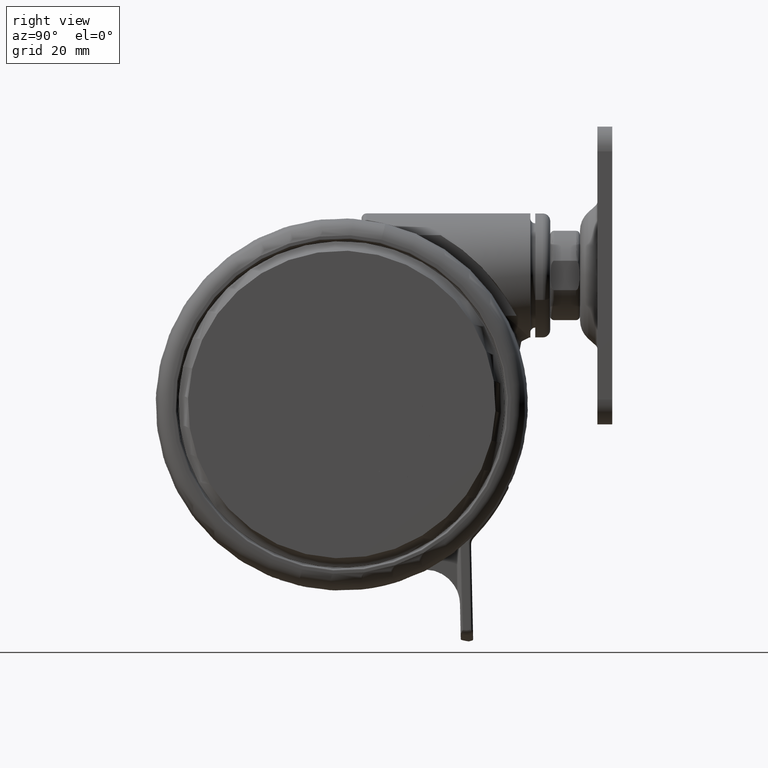
[diagram: clean part render]
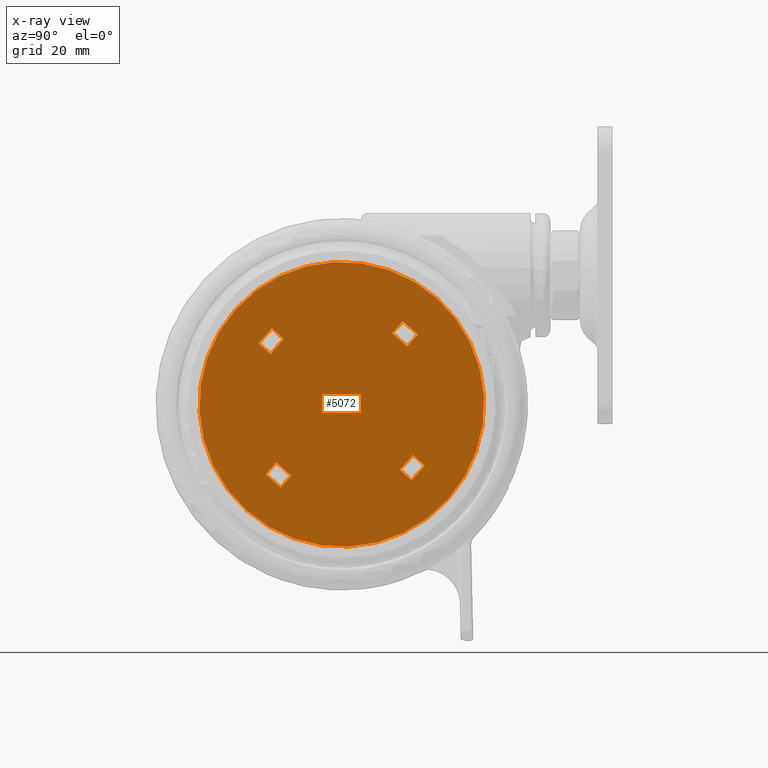
[diagram: x-ray — body ghosted, one internal face saturated and labeled with its STEP entity id]
A machine part, right view, then the same camera in x-ray: the body is ghosted and one INTERNAL B-rep face — a face not visible from any outside direction — is saturated and labeled: STEP entity #5072.
In plain terms, the highlighted planar face has unit normal (-1, 0, 0).
Its self-contained STEP definition (entity closure, byte-faithful):
#6 = DIRECTION ( 'NONE',  ( 0.4744738603141232500, 0.8802695927263498600, -0.0000000000000000000 ) ) ;
#941 = VECTOR ( 'NONE', #53639, 1000.000000000000000 ) ;
#1061 = VERTEX_POINT ( 'NONE', #55160 ) ;
#1752 = CARTESIAN_POINT ( 'NONE',  ( -16.39236325608084900, 11.10767423364093200, -46.19999999999990300 ) ) ;
#2693 = CARTESIAN_POINT ( 'NONE',  ( 14.45577015208284200, -10.06383174094996800, -46.19999999999990300 ) ) ;
#3303 = CARTESIAN_POINT ( 'NONE',  ( 10.06383174094982100, 14.45577015208291600, -46.19999999999990300 ) ) ;
#3896 = ORIENTED_EDGE ( 'NONE', *, *, #26802, .T. ) ;
#4014 = EDGE_CURVE ( 'NONE', #14114, #41415, #67223, .T. ) ;
#4217 = EDGE_CURVE ( 'NONE', #70762, #64488, #41160, .T. ) ;
#4530 = LINE ( 'NONE', #7747, #941 ) ;
#4594 = CARTESIAN_POINT ( 'NONE',  ( 17.27263284880714900, -11.58214809395518300, -46.19999999999990300 ) ) ;
#5059 = CARTESIAN_POINT ( 'NONE',  ( 1.040834085586084300E-014, 0.0000000000000000000, -46.19999999999990300 ) ) ;
#5072 = ADVANCED_FACE ( 'NONE', ( #10628, #24089, #39351, #71712, #8867 ), #22368, .F. ) ;
#5285 = CARTESIAN_POINT ( 'NONE',  ( -17.27263284880719900, 11.58214809395505400, -46.19999999999990300 ) ) ;
#5656 = EDGE_CURVE ( 'NONE', #41838, #33457, #64410, .T. ) ;
#6196 = DIRECTION ( 'NONE',  ( -0.4744738603141294100, -0.8802695927263465300, -0.0000000000000000000 ) ) ;
#6261 = DIRECTION ( 'NONE',  ( 0.4744738603141198100, 0.8802695927263516400, 0.0000000000000000000 ) ) ;
#6632 = CARTESIAN_POINT ( 'NONE',  ( -19.17052829006367900, 8.061069723049648400, -46.19999999999990300 ) ) ;
#7491 = VECTOR ( 'NONE', #71534, 1000.000000000000100 ) ;
#7611 = DIRECTION ( 'NONE',  ( -0.4744738603141198100, -0.8802695927263516400, 0.0000000000000000000 ) ) ;
#7633 = DIRECTION ( 'NONE',  ( -0.8802695927263514100, 0.4744738603141201400, -0.0000000000000000000 ) ) ;
#7702 = VERTEX_POINT ( 'NONE', #67919 ) ;
#7747 = CARTESIAN_POINT ( 'NONE',  ( -16.35366559333936100, 6.542753370044455800, -46.19999999999990300 ) ) ;
#8867 = FACE_BOUND ( 'NONE', #19364, .T. ) ;
#9045 = VECTOR ( 'NONE', #7633, 1000.000000000000100 ) ;
#9255 = LINE ( 'NONE', #54195, #7491 ) ;
#10359 = DIRECTION ( 'NONE',  ( 0.8802695927263514100, -0.4744738603141201400, -0.0000000000000000000 ) ) ;
#10628 = FACE_OUTER_BOUND ( 'NONE', #29141, .T. ) ;
#12299 = EDGE_CURVE ( 'NONE', #1061, #48887, #69336, .T. ) ;
#12403 = CARTESIAN_POINT ( 'NONE',  ( -18.29025869733732500, 7.586595862735523000, -46.19999999999990300 ) ) ;
#12724 = ORIENTED_EDGE ( 'NONE', *, *, #70565, .T. ) ;
#13343 = CARTESIAN_POINT ( 'NONE',  ( -11.10767423364086200, -16.39236325608088800, -46.19999999999990300 ) ) ;
#14114 = VERTEX_POINT ( 'NONE', #59111 ) ;
#14346 = CARTESIAN_POINT ( 'NONE',  ( 16.35366559333932200, -6.542753370044562400, -46.19999999999990300 ) ) ;
#14684 = CARTESIAN_POINT ( 'NONE',  ( -10.06383174094980000, -14.45577015208291600, -46.19999999999990300 ) ) ;
#15424 = ORIENTED_EDGE ( 'NONE', *, *, #21656, .T. ) ;
#15434 = LINE ( 'NONE', #1752, #72958 ) ;
#16258 = DIRECTION ( 'NONE',  ( -0.0000000000000000000, 0.0000000000000000000, 1.000000000000000000 ) ) ;
#16709 = DIRECTION ( 'NONE',  ( 0.4744738603141198100, 0.8802695927263516400, 0.0000000000000000000 ) ) ;
#17224 = DIRECTION ( 'NONE',  ( -0.0000000000000000000, 0.0000000000000000000, 1.000000000000000000 ) ) ;
#17771 = CARTESIAN_POINT ( 'NONE',  ( -7.586595862735455500, -18.29025869733736800, -46.19999999999990300 ) ) ;
#19007 = VECTOR ( 'NONE', #6, 1000.000000000000000 ) ;
#19364 = EDGE_LOOP ( 'NONE', ( #59466, #60767, #52048, #32305 ) ) ;
#19574 = CARTESIAN_POINT ( 'NONE',  ( -14.45577015208287700, 10.06383174094986200, -46.19999999999990300 ) ) ;
#19830 = CARTESIAN_POINT ( 'NONE',  ( 11.58214809395500400, 17.27263284880724100, -46.19999999999990300 ) ) ;
#19865 = CARTESIAN_POINT ( 'NONE',  ( -17.27263284880719900, 11.58214809395505400, -46.19999999999990300 ) ) ;
#20138 = DIRECTION ( 'NONE',  ( 0.4744738603141294100, 0.8802695927263465300, -0.0000000000000000000 ) ) ;
#20328 = CARTESIAN_POINT ( 'NONE',  ( 16.39236325608080200, -11.10767423364105400, -46.19999999999990300 ) ) ;
#20656 = ORIENTED_EDGE ( 'NONE', *, *, #29780, .F. ) ;
#20842 = AXIS2_PLACEMENT_3D ( 'NONE', #50661, #16258, #56395 ) ;
#21656 = EDGE_CURVE ( 'NONE', #1061, #7702, #66046, .T. ) ;
#22368 = PLANE ( 'NONE',  #53812 ) ;
#23261 = ORIENTED_EDGE ( 'NONE', *, *, #72618, .T. ) ;
#23324 = DIRECTION ( 'NONE',  ( -0.8802695927263514100, 0.4744738603141201400, -0.0000000000000000000 ) ) ;
#23571 = VECTOR ( 'NONE', #6261, 1000.000000000000100 ) ;
#24089 = FACE_BOUND ( 'NONE', #35757, .T. ) ;
#24272 = LINE ( 'NONE', #70578, #9045 ) ;
#24302 = EDGE_CURVE ( 'NONE', #28454, #7702, #59443, .T. ) ;
#24417 = EDGE_CURVE ( 'NONE', #14114, #33457, #33349, .T. ) ;
#24636 = EDGE_CURVE ( 'NONE', #51260, #30559, #64769, .T. ) ;
#25881 = CARTESIAN_POINT ( 'NONE',  ( 11.58214809395500400, 17.27263284880724100, -46.19999999999990300 ) ) ;
#26122 = DIRECTION ( 'NONE',  ( 0.8802695927263514100, -0.4744738603141201400, -0.0000000000000000000 ) ) ;
#26802 = EDGE_CURVE ( 'NONE', #63601, #69425, #47310, .T. ) ;
#28454 = VERTEX_POINT ( 'NONE', #14684 ) ;
#28898 = LINE ( 'NONE', #14346, #57628 ) ;
#29141 = EDGE_LOOP ( 'NONE', ( #33445, #3896 ) ) ;
#29780 = EDGE_CURVE ( 'NONE', #68202, #30559, #15434, .T. ) ;
#30559 = VERTEX_POINT ( 'NONE', #19865 ) ;
#31197 = VECTOR ( 'NONE', #10359, 1000.000000000000100 ) ;
#31425 = EDGE_CURVE ( 'NONE', #51260, #60603, #72751, .T. ) ;
#32305 = ORIENTED_EDGE ( 'NONE', *, *, #4217, .T. ) ;
#33306 = CARTESIAN_POINT ( 'NONE',  ( -25.26373731124628800, 13.61739979101524900, -46.19999999999990300 ) ) ;
#33349 = LINE ( 'NONE', #25881, #62099 ) ;
#33445 = ORIENTED_EDGE ( 'NONE', *, *, #53672, .T. ) ;
#33457 = VERTEX_POINT ( 'NONE', #19830 ) ;
#34069 = VERTEX_POINT ( 'NONE', #72415 ) ;
#34446 = CIRCLE ( 'NONE', #64651, 28.70000000000001000 ) ;
#35757 = EDGE_LOOP ( 'NONE', ( #49206, #69177, #49471, #64602 ) ) ;
#36708 = VECTOR ( 'NONE', #38824, 1000.000000000000100 ) ;
#38822 = EDGE_CURVE ( 'NONE', #49019, #34069, #28898, .T. ) ;
#38824 = DIRECTION ( 'NONE',  ( -0.4744738603141198100, -0.8802695927263516400, 0.0000000000000000000 ) ) ;
#39351 = FACE_BOUND ( 'NONE', #70485, .T. ) ;
#39569 = CARTESIAN_POINT ( 'NONE',  ( 11.10767423364088400, 16.39236325608088800, -46.19999999999990300 ) ) ;
#39658 = DIRECTION ( 'NONE',  ( 0.8802695927263515200, -0.4744738603141201400, 0.0000000000000000000 ) ) ;
#39967 = LINE ( 'NONE', #20328, #68688 ) ;
#40087 = CARTESIAN_POINT ( 'NONE',  ( -6.542753370044392700, -16.35366559333939700, -46.19999999999990300 ) ) ;
#40571 = ORIENTED_EDGE ( 'NONE', *, *, #31425, .F. ) ;
#41160 = LINE ( 'NONE', #63388, #54599 ) ;
#41415 = VERTEX_POINT ( 'NONE', #41758 ) ;
#41758 = CARTESIAN_POINT ( 'NONE',  ( 6.542753370044414000, 16.35366559333939700, -46.19999999999990300 ) ) ;
#41820 = EDGE_CURVE ( 'NONE', #49019, #64488, #39967, .T. ) ;
#41838 = VERTEX_POINT ( 'NONE', #3303 ) ;
#41895 = DIRECTION ( 'NONE',  ( -0.8802695927263499700, 0.4744738603141229200, 0.0000000000000000000 ) ) ;
#43472 = EDGE_CURVE ( 'NONE', #70762, #34069, #9255, .T. ) ;
#45550 = CARTESIAN_POINT ( 'NONE',  ( 25.26373731124630600, -13.61739979101525200, -46.19999999999990300 ) ) ;
#47310 = CIRCLE ( 'NONE', #20842, 28.70000000000001000 ) ;
#48887 = VERTEX_POINT ( 'NONE', #40087 ) ;
#49019 = VERTEX_POINT ( 'NONE', #2693 ) ;
#49179 = VECTOR ( 'NONE', #16709, 1000.000000000000100 ) ;
#49206 = ORIENTED_EDGE ( 'NONE', *, *, #4014, .F. ) ;
#49471 = ORIENTED_EDGE ( 'NONE', *, *, #5656, .F. ) ;
#49523 = EDGE_CURVE ( 'NONE', #41838, #41415, #24272, .T. ) ;
#50661 = CARTESIAN_POINT ( 'NONE',  ( 1.040834085586084300E-014, 0.0000000000000000000, -46.19999999999990300 ) ) ;
#51260 = VERTEX_POINT ( 'NONE', #6632 ) ;
#51615 = CARTESIAN_POINT ( 'NONE',  ( 1.040834085586084300E-014, 0.0000000000000000000, -46.19999999999990300 ) ) ;
#52048 = ORIENTED_EDGE ( 'NONE', *, *, #43472, .F. ) ;
#53639 = DIRECTION ( 'NONE',  ( -0.4744738603141232500, -0.8802695927263498600, -0.0000000000000000000 ) ) ;
#53672 = EDGE_CURVE ( 'NONE', #69425, #63601, #34446, .T. ) ;
#53812 = AXIS2_PLACEMENT_3D ( 'NONE', #5059, #74077, #39658 ) ;
#54046 = VECTOR ( 'NONE', #7611, 1000.000000000000100 ) ;
#54195 = CARTESIAN_POINT ( 'NONE',  ( 18.29025869733728300, -7.586595862735646500, -46.19999999999990300 ) ) ;
#54599 = VECTOR ( 'NONE', #6196, 1000.000000000000000 ) ;
#55160 = CARTESIAN_POINT ( 'NONE',  ( -8.061069723049575600, -19.17052829006372100, -46.19999999999990300 ) ) ;
#55514 = ORIENTED_EDGE ( 'NONE', *, *, #12299, .F. ) ;
#56395 = DIRECTION ( 'NONE',  ( 0.8802695927263514100, -0.4744738603141201400, 0.0000000000000000000 ) ) ;
#57342 = DIRECTION ( 'NONE',  ( 0.8802695927263514100, -0.4744738603141201400, 0.0000000000000000000 ) ) ;
#57403 = VECTOR ( 'NONE', #58315, 1000.000000000000100 ) ;
#57628 = VECTOR ( 'NONE', #20138, 1000.000000000000000 ) ;
#58315 = DIRECTION ( 'NONE',  ( 0.8802695927263499700, -0.4744738603141229200, 0.0000000000000000000 ) ) ;
#59111 = CARTESIAN_POINT ( 'NONE',  ( 8.061069723049596900, 19.17052829006372100, -46.19999999999990300 ) ) ;
#59443 = LINE ( 'NONE', #13343, #54046 ) ;
#59466 = ORIENTED_EDGE ( 'NONE', *, *, #41820, .F. ) ;
#60316 = ORIENTED_EDGE ( 'NONE', *, *, #24636, .T. ) ;
#60603 = VERTEX_POINT ( 'NONE', #60741 ) ;
#60741 = CARTESIAN_POINT ( 'NONE',  ( -16.35366559333936100, 6.542753370044455800, -46.19999999999990300 ) ) ;
#60767 = ORIENTED_EDGE ( 'NONE', *, *, #38822, .T. ) ;
#62099 = VECTOR ( 'NONE', #26122, 1000.000000000000100 ) ;
#63388 = CARTESIAN_POINT ( 'NONE',  ( 17.27263284880714900, -11.58214809395518300, -46.19999999999990300 ) ) ;
#63463 = CARTESIAN_POINT ( 'NONE',  ( -11.58214809395498300, -17.27263284880724100, -46.19999999999990300 ) ) ;
#63527 = LINE ( 'NONE', #73638, #31197 ) ;
#63601 = VERTEX_POINT ( 'NONE', #33306 ) ;
#64410 = LINE ( 'NONE', #39569, #49179 ) ;
#64488 = VERTEX_POINT ( 'NONE', #4594 ) ;
#64602 = ORIENTED_EDGE ( 'NONE', *, *, #49523, .T. ) ;
#64651 = AXIS2_PLACEMENT_3D ( 'NONE', #51615, #17224, #57342 ) ;
#64769 = LINE ( 'NONE', #5285, #19007 ) ;
#65514 = EDGE_LOOP ( 'NONE', ( #20656, #12724, #40571, #60316 ) ) ;
#66046 = LINE ( 'NONE', #63463, #69640 ) ;
#67223 = LINE ( 'NONE', #73216, #36708 ) ;
#67919 = CARTESIAN_POINT ( 'NONE',  ( -11.58214809395498300, -17.27263284880724100, -46.19999999999990300 ) ) ;
#68202 = VERTEX_POINT ( 'NONE', #19574 ) ;
#68688 = VECTOR ( 'NONE', #71796, 1000.000000000000100 ) ;
#68842 = CARTESIAN_POINT ( 'NONE',  ( 19.17052829006363300, -8.061069723049774500, -46.19999999999990300 ) ) ;
#69177 = ORIENTED_EDGE ( 'NONE', *, *, #24417, .T. ) ;
#69336 = LINE ( 'NONE', #17771, #23571 ) ;
#69425 = VERTEX_POINT ( 'NONE', #45550 ) ;
#69640 = VECTOR ( 'NONE', #23324, 1000.000000000000100 ) ;
#70485 = EDGE_LOOP ( 'NONE', ( #55514, #15424, #73590, #23261 ) ) ;
#70565 = EDGE_CURVE ( 'NONE', #68202, #60603, #4530, .T. ) ;
#70578 = CARTESIAN_POINT ( 'NONE',  ( 6.542753370044414000, 16.35366559333939700, -46.19999999999990300 ) ) ;
#70762 = VERTEX_POINT ( 'NONE', #68842 ) ;
#71534 = DIRECTION ( 'NONE',  ( -0.8802695927263466400, 0.4744738603141290300, 0.0000000000000000000 ) ) ;
#71712 = FACE_BOUND ( 'NONE', #65514, .T. ) ;
#71796 = DIRECTION ( 'NONE',  ( 0.8802695927263466400, -0.4744738603141290300, 0.0000000000000000000 ) ) ;
#72415 = CARTESIAN_POINT ( 'NONE',  ( 16.35366559333932200, -6.542753370044562400, -46.19999999999990300 ) ) ;
#72618 = EDGE_CURVE ( 'NONE', #28454, #48887, #63527, .T. ) ;
#72751 = LINE ( 'NONE', #12403, #57403 ) ;
#72958 = VECTOR ( 'NONE', #41895, 1000.000000000000100 ) ;
#73216 = CARTESIAN_POINT ( 'NONE',  ( 7.586595862735476800, 18.29025869733736800, -46.19999999999990300 ) ) ;
#73590 = ORIENTED_EDGE ( 'NONE', *, *, #24302, .F. ) ;
#73638 = CARTESIAN_POINT ( 'NONE',  ( -6.542753370044392700, -16.35366559333939700, -46.19999999999990300 ) ) ;
#74077 = DIRECTION ( 'NONE',  ( 0.0000000000000000000, -0.0000000000000000000, -1.000000000000000000 ) ) ;